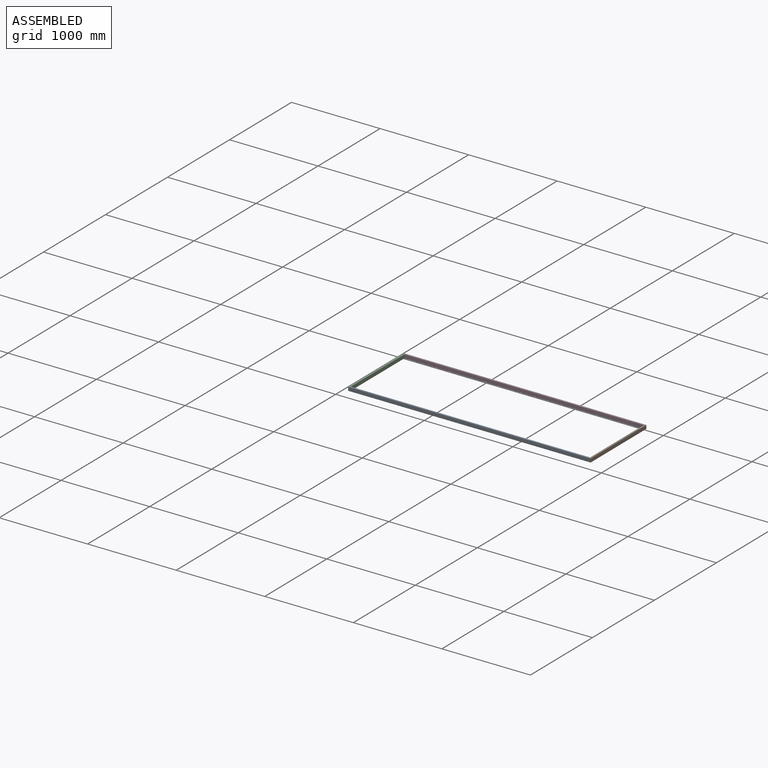
[diagram: assembled view]
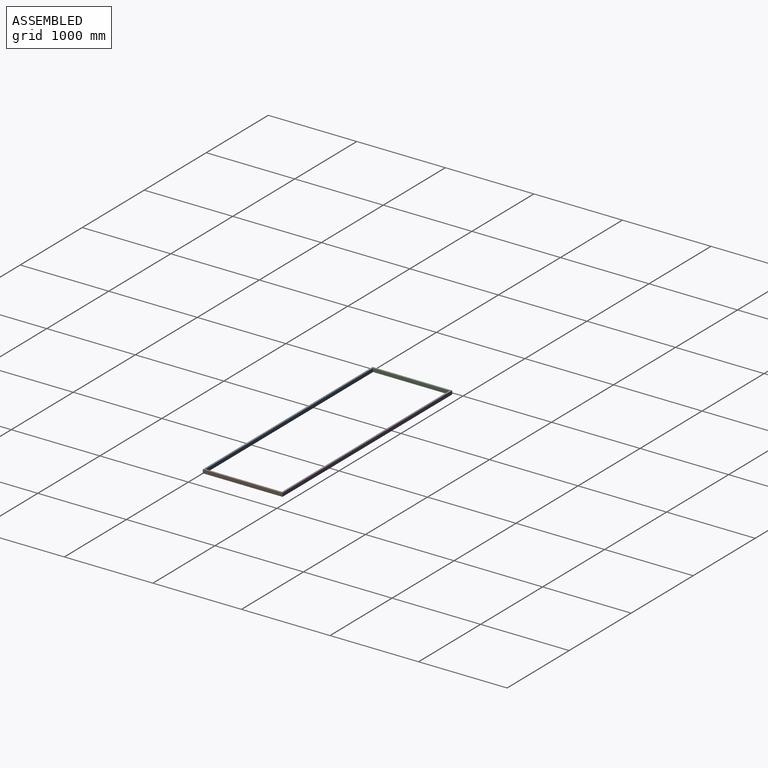
[diagram: assembled view, second angle]
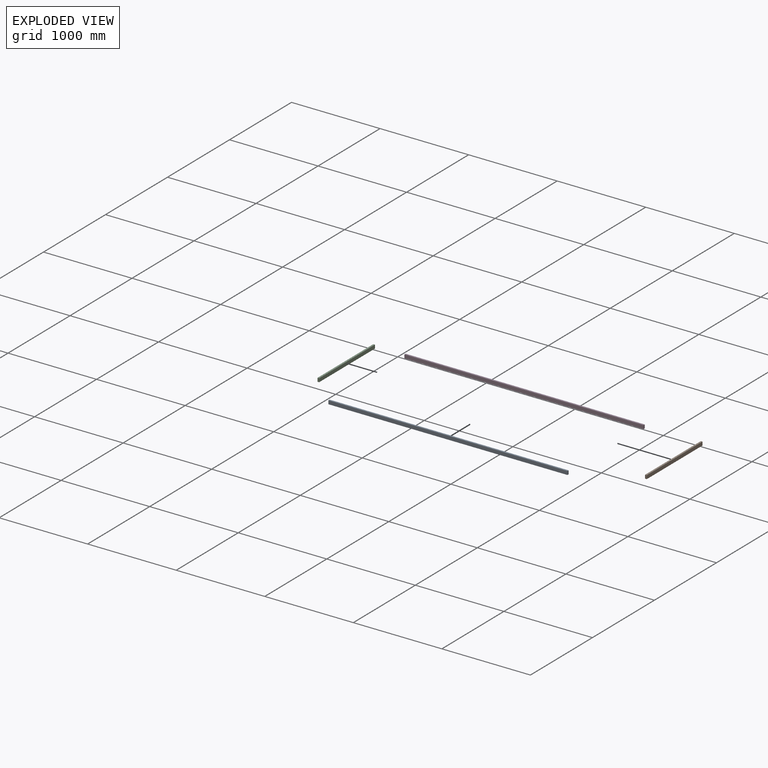
[diagram: exploded view]
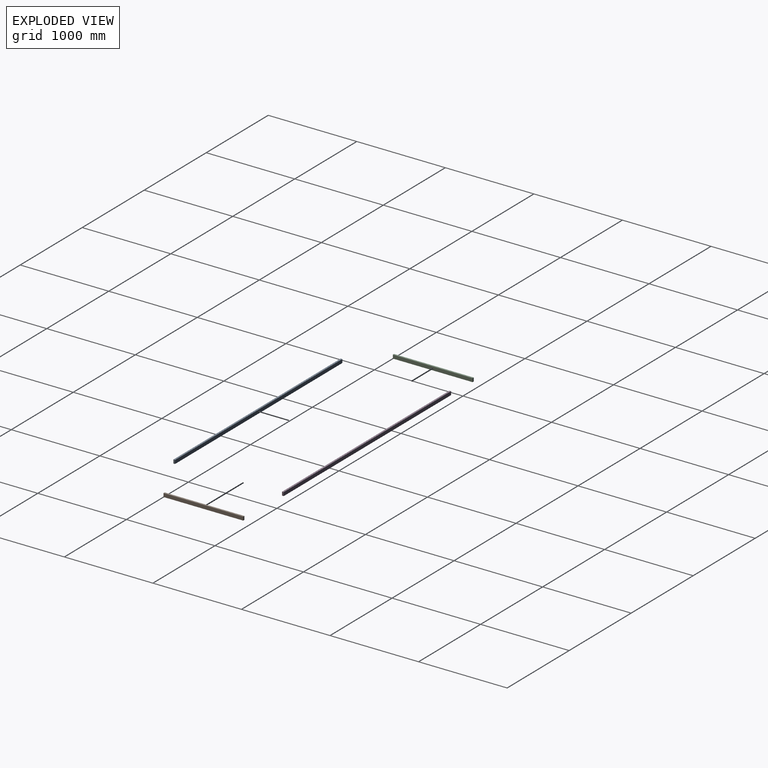
[diagram: exploded view, second angle]
ASSEMBLY  parts=4 mates=3
PART A: 6 faces, bbox 2700x40x19 mm
  f0: plane 2700x19mm, normal (0,1,0), area 51300mm2, adj f1,f3,f4,f5
  f1: plane 40x19mm, normal (-1,0,0), area 760mm2, adj f0,f2,f4,f5
  f2: plane 2700x19mm, normal (0,-1,0), area 51300mm2, adj f1,f3,f4,f5
  f3: plane 40x19mm, normal (1,0,0), area 760mm2, adj f0,f2,f4,f5
  f4: plane 2700x40mm, normal (0,0,1), area 108000mm2, adj f0,f1,f2,f3
  f5: plane 2700x40mm, normal (0,0,-1), area 108000mm2, adj f0,f1,f2,f3
PART B: 6 faces, bbox 40x900x19 mm
  f0: plane 40x19mm, normal (0,1,0), area 760mm2, adj f1,f3,f4,f5
  f1: plane 900x19mm, normal (-1,0,0), area 17100mm2, adj f0,f2,f4,f5
  f2: plane 40x19mm, normal (0,-1,0), area 760mm2, adj f1,f3,f4,f5
  f3: plane 900x19mm, normal (1,0,0), area 17100mm2, adj f0,f2,f4,f5
  f4: plane 900x40mm, normal (0,0,1), area 36000mm2, adj f0,f1,f2,f3
  f5: plane 900x40mm, normal (0,0,-1), area 36000mm2, adj f0,f1,f2,f3
PART C: same geometry as B
PART D: same geometry as A
PLACE A rot(axis=(-1,0,0),90deg) t=(-2876.98,-947.58,-404.97)mm
PLACE B rot(axis=(0,1,0),90deg) t=(-176.98,-47.58,-364.97)mm
PLACE C rot(axis=(0,1,0),90deg) t=(-2895.98,-47.58,-364.97)mm
PLACE D rot(axis=(-1,0,0),90deg) t=(-2876.98,-66.58,-404.97)mm
MATE fastened D.f1 <-> C.f4  axis (-1,0,0) through (-2876.98,-57.08,-384.97)mm
MATE fastened A.f3 <-> B.f5  axis (1,0,0) through (-176.98,-938.08,-384.97)mm
MATE fastened A.f1 <-> C.f4  axis (-1,0,0) through (-2876.98,-938.08,-384.97)mm
